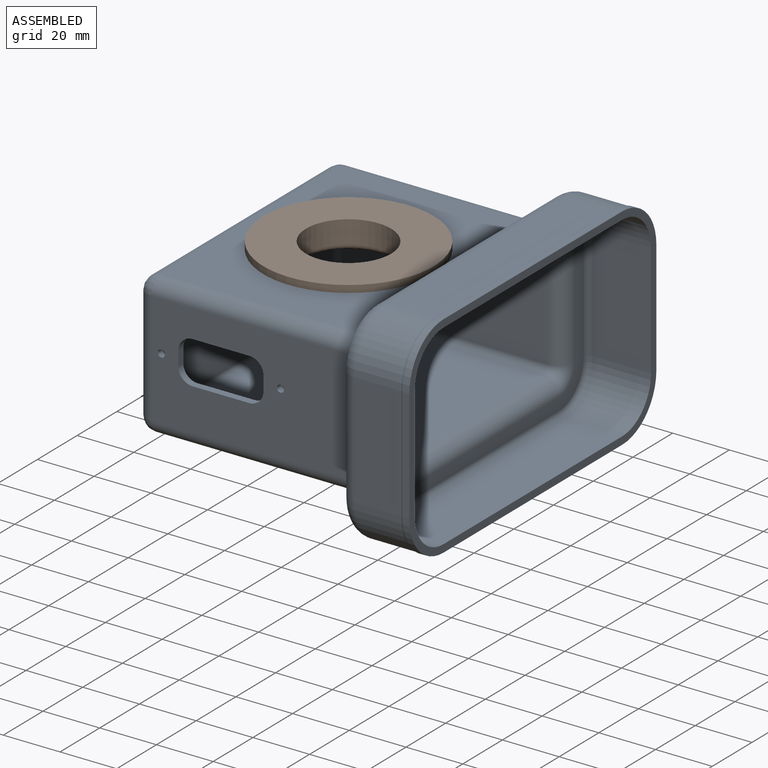
[diagram: assembled view]
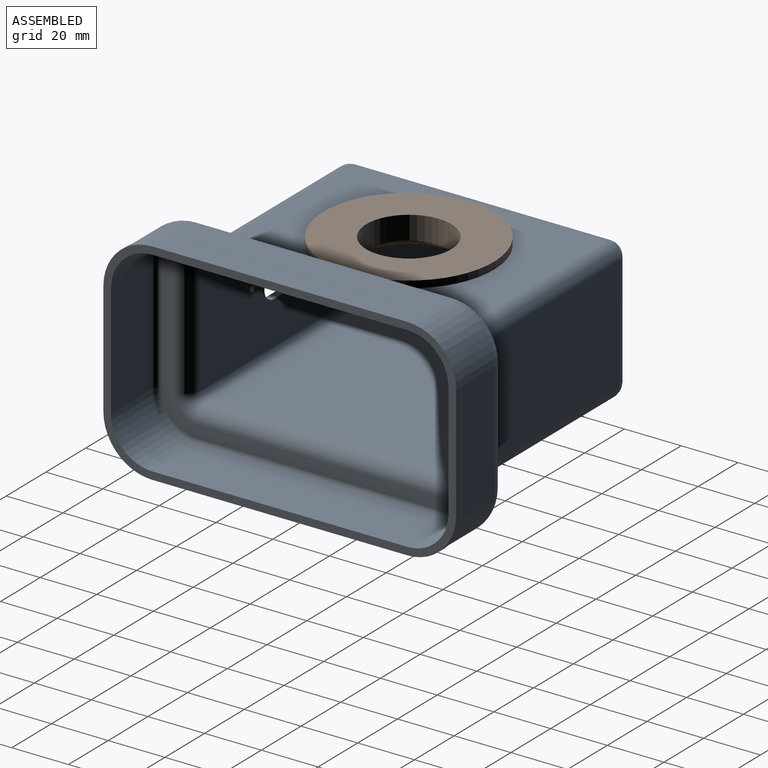
[diagram: assembled view, second angle]
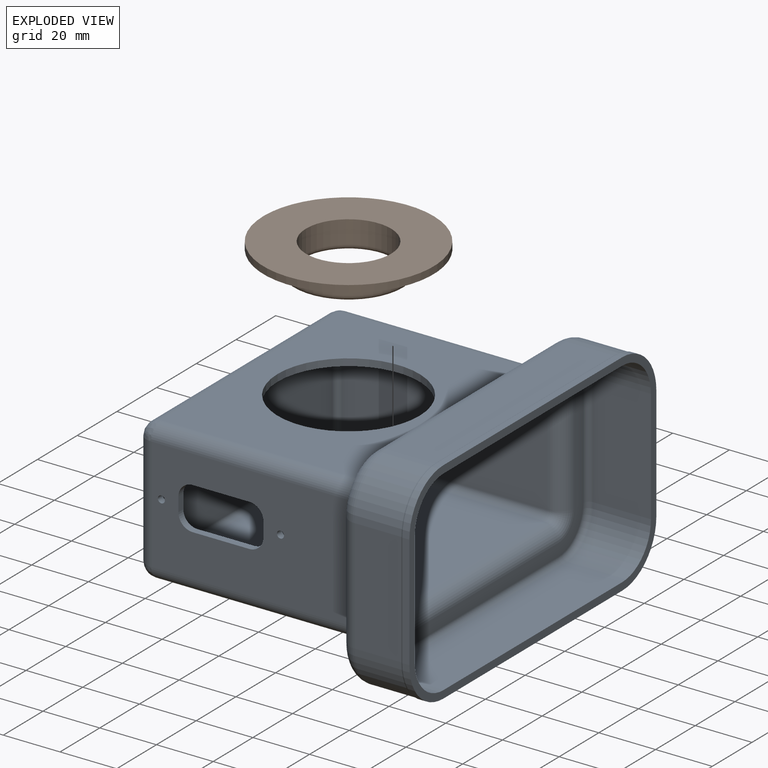
[diagram: exploded view]
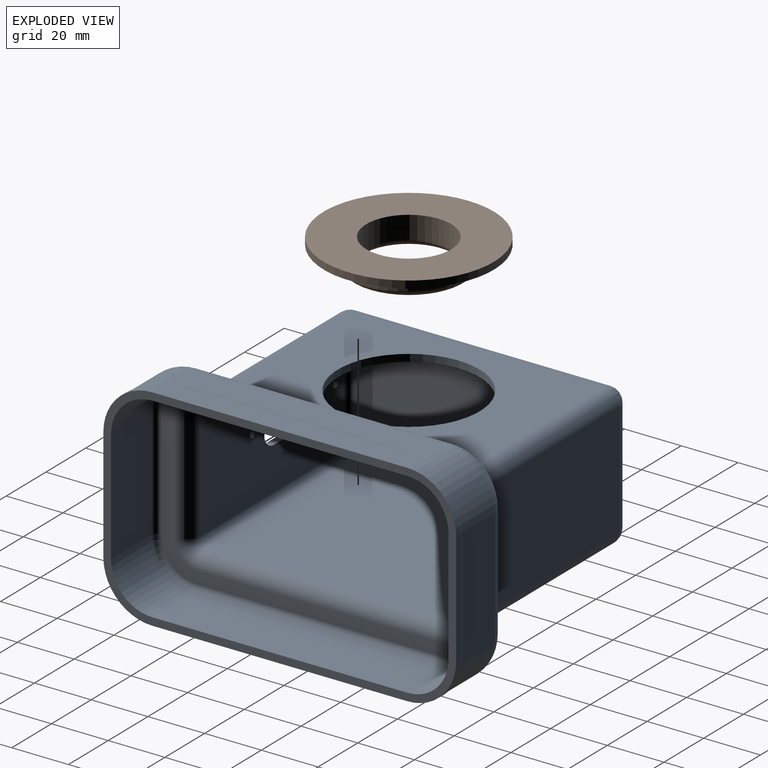
[diagram: exploded view, second angle]
ASSEMBLY  parts=2 mates=2
PART A: 113 faces, bbox 105x127.4x77.4 mm
  f0: plane 90x16.4mm, normal (0,0,1), area 1476mm2, adj f1,f7,f74,f110
  f1: cylinder r=17mm len=17mm, axis (-1,0,0), area 437.9mm2, adj f0,f2,f72,f108
  f2: plane 40x16.4mm, normal (0,-1,0), area 656mm2, adj f1,f3,f71,f106
  f3: cylinder r=17mm len=17mm, axis (-1,0,0), area 437.9mm2, adj f2,f4,f73,f104
  f4: plane 90x16.4mm, normal (0,0,-1), area 1476mm2, adj f3,f5,f75,f103
  f5: cylinder r=17mm len=17mm, axis (-1,0,0), area 437.9mm2, adj f4,f6,f77,f105
  f6: plane 40x16.4mm, normal (0,1,0), area 656mm2, adj f5,f7,f78,f107
  f7: cylinder r=17mm len=17mm, axis (-1,0,0), area 437.9mm2, adj f0,f6,f76,f109
  f8: plane 71.5x40mm, normal (0,-1,0), area 2421.6mm2, adj f15,f17,f37,f38,f39,f40,f41,f42
  f9: plane 72.5x40mm, normal (0,1,0), area 2461.6mm2, adj f24,f26,f37,f38,f39,f40,f41,f42
  f10: plane 124.4x74.4mm, normal (1,0,0), area 970.9mm2, adj f28,f29,f30,f31,f32,f33,f34,f35
  f11: plane 89x39mm, normal (-1,0,0), area 3447.2mm2, adj f87,f90,f91,f94,f112
  f12: plane 71.5x40mm, normal (0,1,0), area 2860mm2, adj f16,f18,f47,f91
  f13: plane 90x71.5mm, normal (0,0,1), area 4471.5mm2, adj f17,f18,f50,f87,f111
  f14: plane 90x71.5mm, normal (0,0,-1), area 6435mm2, adj f15,f16,f51,f94
  f15: cylinder r=5mm len=71.5mm, axis (1,0,0), area 561.6mm2, adj f8,f14,f53,f92
  f16: cylinder r=5mm len=71.5mm, axis (-1,0,0), area 561.6mm2, adj f12,f14,f49,f93
  f17: cylinder r=5mm len=71.5mm, axis (-1,0,0), area 561.6mm2, adj f8,f13,f52,f88
  f18: cylinder r=5mm len=71.5mm, axis (1,0,0), area 561.6mm2, adj f12,f13,f48,f89
  f19: plane 113x63mm, normal (-1,0,0), area 1124.4mm2, adj f47,f48,f49,f50,f51,f52,f53,f54
  f20: plane 91x41mm, normal (1,0,0), area 3707mm2, adj f79,f80,f81,f82,f83,f84,f85,f86
  f21: plane 72.5x40mm, normal (0,-1,0), area 2900mm2, adj f25,f27,f59,f79
  f22: plane 90x72.5mm, normal (0,0,-1), area 4561.5mm2, adj f26,f27,f55,f82,f111
  f23: plane 90x72.5mm, normal (0,0,1), area 6525mm2, adj f24,f25,f62,f83
  f24: cylinder r=2.5mm len=72.5mm, axis (1,0,0), area 284.7mm2, adj f9,f23,f60,f85
  f25: cylinder r=2.5mm len=72.5mm, axis (-1,0,0), area 284.7mm2, adj f21,f23,f61,f81
  f26: cylinder r=2.5mm len=72.5mm, axis (-1,0,0), area 284.7mm2, adj f9,f22,f56,f84
  f27: cylinder r=2.5mm len=72.5mm, axis (1,0,0), area 284.7mm2, adj f21,f22,f57,f80
  f28: plane 90x20.5mm, normal (0,0,-1), area 1845mm2, adj f10,f29,f35,f63
  f29: cylinder r=14.5mm len=20.5mm, axis (-1,0,0), area 466.9mm2, adj f10,f28,f30,f64
  f30: plane 40x20.5mm, normal (0,1,0), area 820mm2, adj f10,f29,f31,f66
  f31: cylinder r=14.5mm len=20.5mm, axis (-1,0,0), area 466.9mm2, adj f10,f30,f32,f68
  f32: plane 90x20.5mm, normal (0,0,1), area 1845mm2, adj f10,f31,f33,f70
  f33: cylinder r=14.5mm len=20.5mm, axis (-1,0,0), area 466.9mm2, adj f10,f32,f34,f69
  f34: plane 40x20.5mm, normal (0,-1,0), area 820mm2, adj f10,f33,f35,f67
  f35: cylinder r=14.5mm len=20.5mm, axis (-1,0,0), area 466.9mm2, adj f10,f28,f34,f65
  f36: plane 115x65mm, normal (1,0,0), area 1459.8mm2, adj f55,f56,f57,f58,f59,f60,f61,f62
  f37: plane 20x2.5mm, normal (0,0,1), area 50mm2, adj f8,f9,f41,f43
  f38: plane 5x2.5mm, normal (-1,0,0), area 12.5mm2, adj f8,f9,f41,f42
  f39: plane 20x2.5mm, normal (0,0,-1), area 50mm2, adj f8,f9,f42,f44
  f40: plane 5x2.5mm, normal (1,0,0), area 12.5mm2, adj f8,f9,f43,f44
  f41: cylinder r=5mm len=5mm, axis (0,-1,0), area 19.6mm2, adj f8,f9,f37,f38
  f42: cylinder r=5mm len=5mm, axis (0,1,0), area 19.6mm2, adj f8,f9,f38,f39
  f43: cylinder r=5mm len=5mm, axis (0,1,0), area 19.6mm2, adj f8,f9,f37,f40
  f44: cylinder r=5mm len=5mm, axis (0,-1,0), area 19.6mm2, adj f8,f9,f39,f40
  f45: cylinder r=1.25mm len=2.5mm, axis (0,-1,0), area 19.6mm2, adj f8,f9
  f46: cylinder r=1.25mm len=2.5mm, axis (0,-1,0), area 19.6mm2, adj f8,f9
  f47: cylinder r=3mm len=40mm, axis (0,0,-1), area 188.5mm2, adj f12,f19,f48,f49
  f48: torus R=8mm, axis (1,0,0), area 45.1mm2, adj f18,f19,f47,f50
  f49: torus R=8mm, axis (1,0,0), area 45.1mm2, adj f16,f19,f47,f51
  f50: cylinder r=3mm len=90mm, axis (0,1,0), area 424.1mm2, adj f13,f19,f48,f52
  f51: cylinder r=3mm len=90mm, axis (0,-1,0), area 424.1mm2, adj f14,f19,f49,f53
  f52: torus R=8mm, axis (1,0,0), area 45.1mm2, adj f17,f19,f50,f54
  f53: torus R=8mm, axis (1,0,0), area 45.1mm2, adj f15,f19,f51,f54
  f54: cylinder r=3mm len=40mm, axis (0,0,1), area 188.5mm2, adj f8,f19,f52,f53
  f55: cylinder r=5.5mm len=90mm, axis (0,-1,0), area 777.5mm2, adj f22,f36,f56,f57
  f56: torus R=8mm, axis (1,0,0), area 61mm2, adj f26,f36,f55,f58
  f57: torus R=8mm, axis (1,0,0), area 61mm2, adj f27,f36,f55,f59
  f58: cylinder r=5.5mm len=40mm, axis (0,0,-1), area 345.6mm2, adj f9,f36,f56,f60
  f59: cylinder r=5.5mm len=40mm, axis (0,0,1), area 345.6mm2, adj f21,f36,f57,f61
  f60: torus R=8mm, axis (1,0,0), area 61mm2, adj f24,f36,f58,f62
  f61: torus R=8mm, axis (1,0,0), area 61mm2, adj f25,f36,f59,f62
  f62: cylinder r=5.5mm len=90mm, axis (0,1,0), area 777.5mm2, adj f23,f36,f60,f61
  f63: cylinder r=2mm len=90mm, axis (0,1,0), area 282.7mm2, adj f28,f36,f64,f65
  f64: torus R=12.5mm, axis (1,0,0), area 68mm2, adj f29,f36,f63,f66
  f65: torus R=12.5mm, axis (1,0,0), area 68mm2, adj f35,f36,f63,f67
  f66: cylinder r=2mm len=40mm, axis (0,0,1), area 125.7mm2, adj f30,f36,f64,f68
  f67: cylinder r=2mm len=40mm, axis (0,0,-1), area 125.7mm2, adj f34,f36,f65,f69
  f68: torus R=12.5mm, axis (1,0,0), area 68mm2, adj f31,f36,f66,f70
  f69: torus R=12.5mm, axis (1,0,0), area 68mm2, adj f33,f36,f67,f70
  f70: cylinder r=2mm len=90mm, axis (0,-1,0), area 282.7mm2, adj f32,f36,f68,f69
  f71: cylinder r=5.5mm len=40mm, axis (0,0,-1), area 345.6mm2, adj f2,f19,f72,f73
  f72: torus R=11.5mm, axis (1,0,0), area 203.6mm2, adj f1,f19,f71,f74
  f73: torus R=11.5mm, axis (1,0,0), area 203.6mm2, adj f3,f19,f71,f75
  f74: cylinder r=5.5mm len=90mm, axis (0,-1,0), area 777.5mm2, adj f0,f19,f72,f76
  f75: cylinder r=5.5mm len=90mm, axis (0,1,0), area 777.5mm2, adj f4,f19,f73,f77
  f76: torus R=11.5mm, axis (1,0,0), area 203.6mm2, adj f7,f19,f74,f78
  f77: torus R=11.5mm, axis (1,0,0), area 203.6mm2, adj f5,f19,f75,f78
  f78: cylinder r=5.5mm len=40mm, axis (0,0,1), area 345.6mm2, adj f6,f19,f76,f77
  f79: cylinder r=2mm len=40mm, axis (0,0,1), area 125.7mm2, adj f20,f21,f80,f81
  f80: torus R=0.5mm, axis (-1,0,0), area 8.8mm2, adj f20,f27,f79,f82
  f81: torus R=0.5mm, axis (-1,0,0), area 8.8mm2, adj f20,f25,f79,f83
  f82: cylinder r=2mm len=90mm, axis (0,-1,0), area 282.7mm2, adj f20,f22,f80,f84
  f83: cylinder r=2mm len=90mm, axis (0,1,0), area 282.7mm2, adj f20,f23,f81,f85
  f84: torus R=0.5mm, axis (-1,0,0), area 8.8mm2, adj f20,f26,f82,f86
  f85: torus R=0.5mm, axis (-1,0,0), area 8.8mm2, adj f20,f24,f83,f86
  f86: cylinder r=2mm len=40mm, axis (0,0,-1), area 125.7mm2, adj f9,f20,f84,f85
  f87: cylinder r=5.5mm len=90mm, axis (0,1,0), area 774.4mm2, adj f11,f13,f88,f89
  f88: bspline ~5.84x5.5mm, area 43.6mm2, adj f17,f87,f90
  f89: bspline ~5.84x5.5mm, area 43.6mm2, adj f18,f87,f91
  f90: cylinder r=5.5mm len=40mm, axis (0,0,1), area 342.4mm2, adj f8,f11,f88,f92
  f91: cylinder r=5.5mm len=40mm, axis (0,0,-1), area 342.4mm2, adj f11,f12,f89,f93
  f92: bspline ~5.84x5.5mm, area 43.6mm2, adj f15,f90,f94
  f93: bspline ~5.84x5.5mm, area 43.6mm2, adj f16,f91,f94
  f94: cylinder r=5.5mm len=90mm, axis (0,-1,0), area 774.4mm2, adj f11,f14,f92,f93
  f95: cylinder r=17.2mm len=17.2mm, axis (1,0,0), area 67.5mm2, adj f10,f96,f102,f104
  f96: plane 90x2.5mm, normal (0,0,-1), area 225mm2, adj f10,f95,f97,f103
  f97: cylinder r=17.2mm len=17.2mm, axis (1,0,0), area 67.5mm2, adj f10,f96,f98,f105
  f98: plane 40x2.5mm, normal (0,1,0), area 100mm2, adj f10,f97,f99,f107
  f99: cylinder r=17.2mm len=17.2mm, axis (1,0,0), area 67.5mm2, adj f10,f98,f100,f109
  f100: plane 90x2.5mm, normal (0,0,1), area 225mm2, adj f10,f99,f101,f110
  f101: cylinder r=17.2mm len=17.2mm, axis (1,0,0), area 67.5mm2, adj f10,f100,f102,f108
  f102: plane 40x2.5mm, normal (0,-1,0), area 100mm2, adj f10,f95,f101,f106
  f103: cylinder r=1mm len=90mm, axis (0,1,0), area 57.9mm2, adj f4,f96,f104,f105
  f104: torus R=18mm, axis (1,0,0), area 17.3mm2, adj f3,f95,f103,f106
  f105: torus R=18mm, axis (1,0,0), area 17.3mm2, adj f5,f97,f103,f107
  f106: cylinder r=1mm len=40mm, axis (0,0,-1), area 25.7mm2, adj f2,f102,f104,f108
  f107: cylinder r=1mm len=40mm, axis (0,0,1), area 25.7mm2, adj f6,f98,f105,f109
  f108: torus R=18mm, axis (1,0,0), area 17.3mm2, adj f1,f101,f106,f110
  f109: torus R=18mm, axis (1,0,0), area 17.3mm2, adj f7,f99,f107,f110
  f110: cylinder r=1mm len=90mm, axis (0,-1,0), area 57.9mm2, adj f0,f100,f108,f109
  f111: cylinder r=25mm len=50mm, axis (0,0,1), area 392.7mm2, adj f13,f22
  f112: cylinder r=2.75mm len=5.5mm, axis (-1,0,0), area 43.2mm2, adj f11,f20
PART B: 10 faces, bbox 10x60x60 mm
  f0: plane 60x60mm, normal (-1,0,0), area 2120.6mm2, adj f1,f7
  f1: cylinder r=30mm len=60mm, axis (-1,0,0), area 471.2mm2, adj f0,f2
  f2: plane 60x60mm, normal (1,0,0), area 863.9mm2, adj f1,f3
  f3: cylinder r=25mm len=50mm, axis (-1,0,0), area 392.7mm2, adj f2,f4
  f4: plane 50x50mm, normal (1,0,0), area 706.9mm2, adj f3,f5
  f5: cylinder r=20mm len=40mm, axis (-1,0,0), area 377mm2, adj f4,f8
  f6: plane 36x36mm, normal (1,0,0), area 110mm2, adj f8,f9
  f7: cylinder r=15mm len=30mm, axis (-1,0,0), area 754mm2, adj f0,f9
  f8: torus R=18mm, axis (-1,0,0), area 380.4mm2, adj f5,f6
  f9: torus R=17mm, axis (-1,0,0), area 310.4mm2, adj f6,f7
PLACE A t=(-151.56,33.7,130.74)mm fixed
PLACE B rot(axis=(-0.71,0,0.71),180deg) t=(-81.86,33.7,183.24)mm
MATE planar A.f13 <-> B.f1  axis (0,0,1) through (-110.06,33.7,180.74)mm
MATE cylindrical B.f1 <-> A.f111  axis (0,0,1) through (-111.86,33.7,179.49)mm
